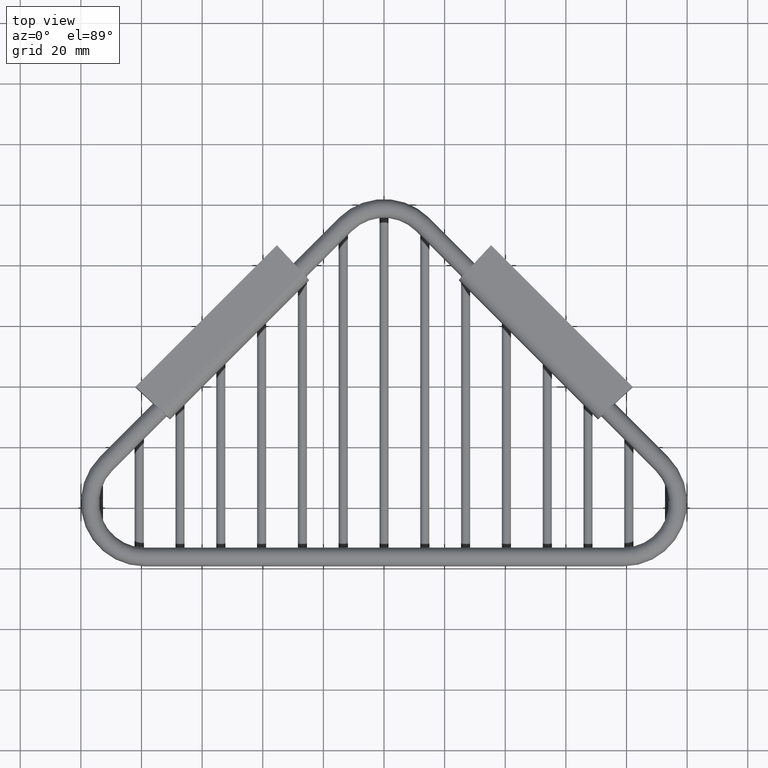
[diagram: clean part render]
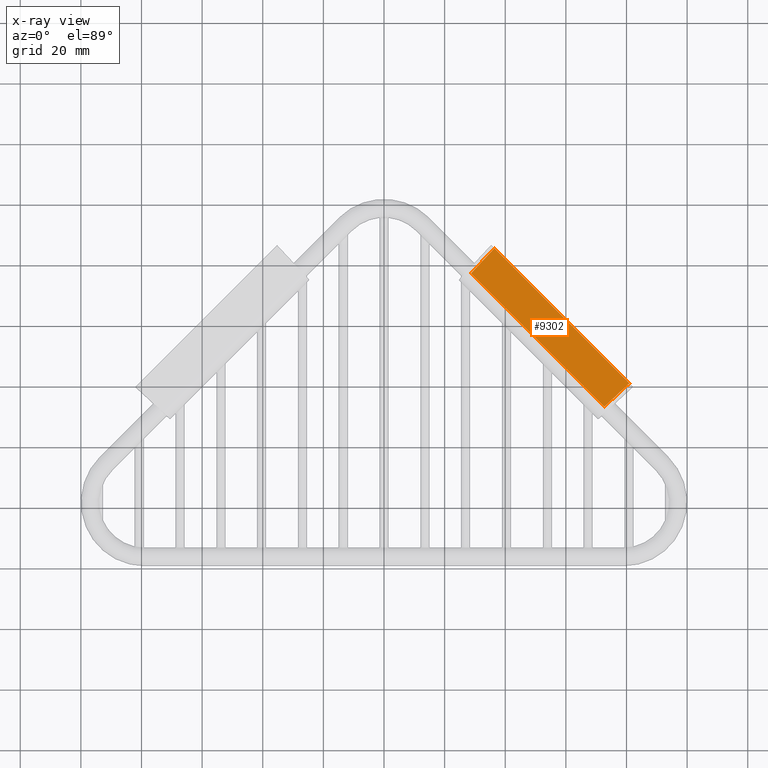
[diagram: x-ray — body ghosted, one internal face saturated and labeled with its STEP entity id]
A machine part, top view, then the same camera in x-ray: the body is ghosted and one INTERNAL B-rep face — a face not visible from any outside direction — is saturated and labeled: STEP entity #9302.
In plain terms, the highlighted planar face has unit normal (-0.0619, -0.0619, 0.9962).
Its self-contained STEP definition (entity closure, byte-faithful):
#8814=CARTESIAN_POINT('',(1.224482673794E0,-1.383282346926E-1,
2.658198220698E-1));
#8824=DIRECTION('',(1.E0,0.E0,0.E0));
#8825=VECTOR('',#8824,2.448965347587E0);
#8826=CARTESIAN_POINT('',(-1.224482673794E0,-1.383282346926E-1,
2.658198220698E-1));
#8827=LINE('',#8826,#8825);
#8836=CARTESIAN_POINT('',(-1.224482673794E0,-1.383282346926E-1,
2.658198220698E-1));
#8904=DIRECTION('',(-3.476571851847E-2,-9.955599210576E-1,-8.747450142599E-2));
#8905=VECTOR('',#8904,4.453054259373E-1);
#8906=CARTESIAN_POINT('',(1.239964036886E0,3.05E-1,3.047726921860E-1));
#8907=LINE('',#8906,#8905);
#8908=DIRECTION('',(1.E0,0.E0,0.E0));
#8909=VECTOR('',#8908,2.479928073773E0);
#8910=CARTESIAN_POINT('',(-1.239964036886E0,3.05E-1,3.047726921860E-1));
#8911=LINE('',#8910,#8909);
#8912=DIRECTION('',(-3.476571851847E-2,9.955599210576E-1,8.747450142599E-2));
#8913=VECTOR('',#8912,4.453054259373E-1);
#8914=CARTESIAN_POINT('',(-1.224482673794E0,-1.383282346926E-1,
2.658198220698E-1));
#8915=LINE('',#8914,#8913);
#9012=VERTEX_POINT('',#8814);
#9013=CARTESIAN_POINT('',(1.239964036886E0,3.05E-1,3.047726921860E-1));
#9014=VERTEX_POINT('',#9013);
#9015=VERTEX_POINT('',#8836);
#9016=CARTESIAN_POINT('',(-1.239964036886E0,3.05E-1,3.047726921860E-1));
#9017=VERTEX_POINT('',#9016);
#9291=CARTESIAN_POINT('',(0.E0,3.101641173463E-1,3.052264354320E-1));
#9292=DIRECTION('',(0.E0,-8.752741264920E-2,9.961621113227E-1));
#9293=DIRECTION('',(1.E0,0.E0,0.E0));
#9294=AXIS2_PLACEMENT_3D('',#9291,#9292,#9293);
#9295=PLANE('',#9294);
#9296=ORIENTED_EDGE('',*,*,#9283,.F.);
#9297=ORIENTED_EDGE('',*,*,#9271,.F.);
#9298=ORIENTED_EDGE('',*,*,#9173,.F.);
#9299=ORIENTED_EDGE('',*,*,#9196,.T.);
#9300=EDGE_LOOP('',(#9296,#9297,#9298,#9299));
#9301=FACE_OUTER_BOUND('',#9300,.F.);
#9173=EDGE_CURVE('',#9015,#9017,#8915,.T.);
#9196=EDGE_CURVE('',#9015,#9012,#8827,.T.);
#9271=EDGE_CURVE('',#9017,#9014,#8911,.T.);
#9283=EDGE_CURVE('',#9014,#9012,#8907,.T.);
#9302=ADVANCED_FACE('',(#9301),#9295,.F.);